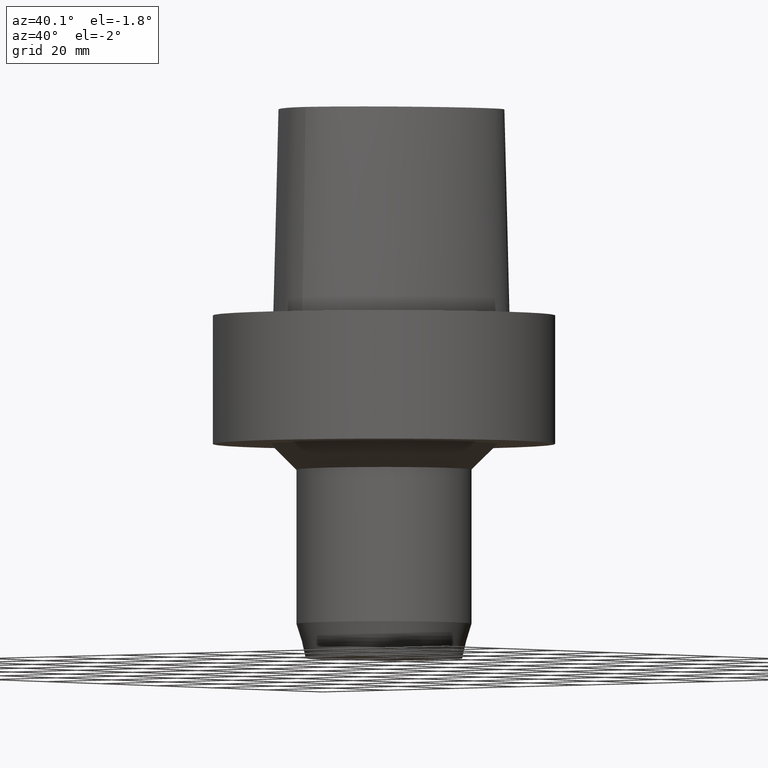
[diagram: clean part render]
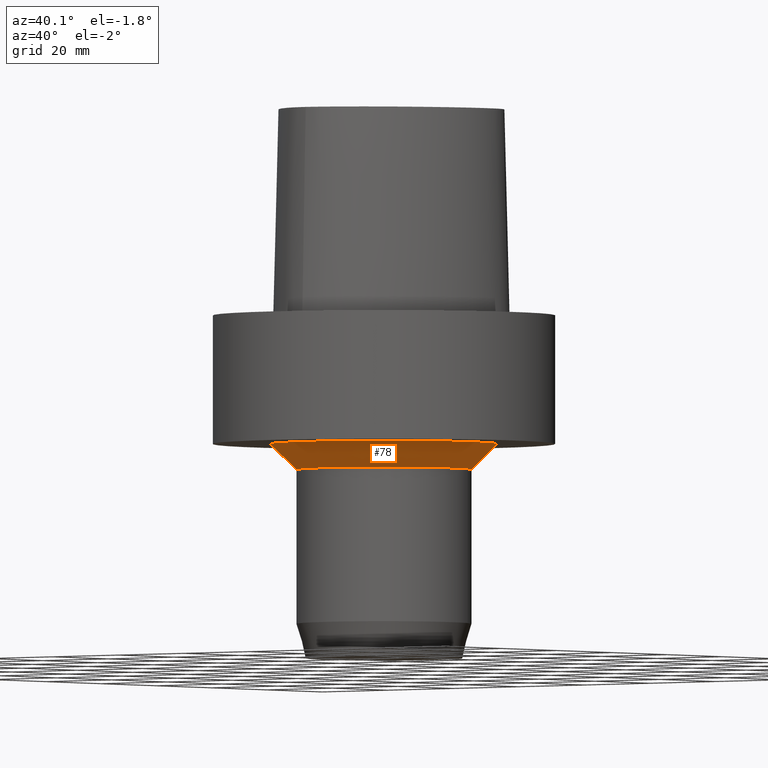
[diagram: same view with one face highlighted and labeled with its STEP entity id]
A machine part, auxiliary view. The second image highlights one B-rep face of the part: STEP entity #78.
In plain terms, the highlighted conical surface has half-angle 45 deg.
Its self-contained STEP definition (entity closure, byte-faithful):
#78=ADVANCED_FACE('',(#92,#93),#94,.T.);
#92=FACE_BOUND('',#499,.T.);
#93=FACE_BOUND('',#500,.T.);
#94=CONICAL_SURFACE('',#501,23.5,0.785398163397449);
#499=EDGE_LOOP('',(#529));
#500=EDGE_LOOP('',(#530));
#501=AXIS2_PLACEMENT_3D('',#531,#532,#533);
#529=ORIENTED_EDGE('',*,*,#563,.F.);
#530=ORIENTED_EDGE('',*,*,#561,.T.);
#531=CARTESIAN_POINT('',(2.02066721859313E-015,4.04133443718626E-015,-33.0));
#532=DIRECTION('',(-6.12323399573677E-017,-1.22464679914735E-016,1.0));
#533=DIRECTION('',(-1.23259516440783E-032,1.0,1.22464679914735E-016));
#561=EDGE_CURVE('',#572,#572,#573,.T.);
#563=EDGE_CURVE('',#576,#576,#577,.T.);
#572=VERTEX_POINT('',#735);
#573=CIRCLE('',#736,26.5);
#576=VERTEX_POINT('',#739);
#577=CIRCLE('',#740,20.5);
#735=CARTESIAN_POINT('',(1.83697019872103E-015,26.5,-30.0));
#736=AXIS2_PLACEMENT_3D('',#747,#748,#749);
#739=CARTESIAN_POINT('',(2.20436423846524E-015,20.5,-36.0));
#740=AXIS2_PLACEMENT_3D('',#753,#754,#755);
#747=CARTESIAN_POINT('',(1.83697019872103E-015,3.67394039744206E-015,-30.0));
#748=DIRECTION('',(6.12323399573677E-017,1.22464679914735E-016,-1.0));
#749=DIRECTION('',(-1.23259516440783E-032,1.0,1.22464679914735E-016));
#753=CARTESIAN_POINT('',(2.20436423846524E-015,4.40872847693047E-015,-36.0));
#754=DIRECTION('',(6.12323399573677E-017,1.22464679914735E-016,-1.0));
#755=DIRECTION('',(-1.23259516440783E-032,1.0,1.22464679914735E-016));